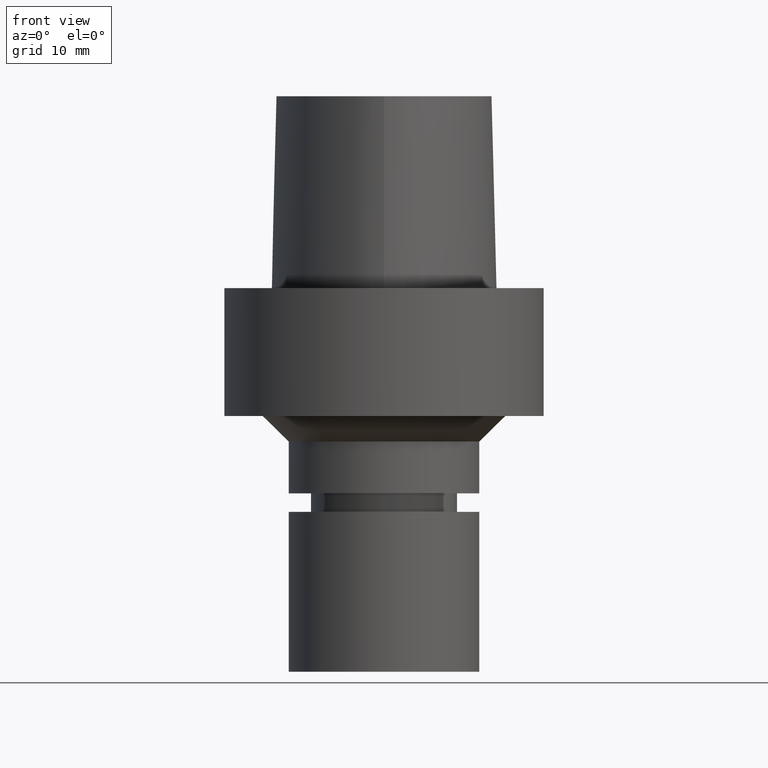
[diagram: clean part render]
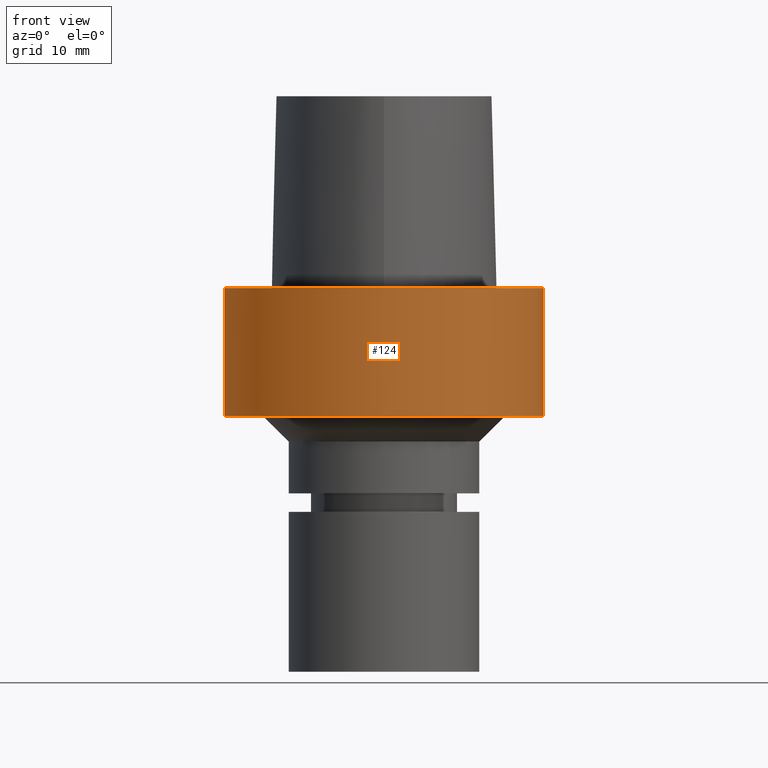
[diagram: same view with one face highlighted and labeled with its STEP entity id]
A machine part, front view. The second image highlights one B-rep face of the part: STEP entity #124.
In plain terms, the highlighted cylindrical surface (bore or boss wall) has radius 25 mm, axis along (0, 0, -1).
Its self-contained STEP definition (entity closure, byte-faithful):
#84=EDGE_CURVE('Unnamed[1]',#195,#195,#196,.T.);
#113=EDGE_CURVE('Unnamed[1]',#236,#236,#237,.T.);
#124=ADVANCED_FACE('Unnamed[1]',(#252,#253),#254,.T.);
#195=VERTEX_POINT('',#387);
#196=CIRCLE('',#388,25.0);
#236=VERTEX_POINT('',#824);
#237=CIRCLE('',#825,25.0);
#252=FACE_BOUND('',#895,.T.);
#253=FACE_BOUND('',#896,.T.);
#254=CYLINDRICAL_SURFACE('',#897,25.0);
#387=CARTESIAN_POINT('',(1.22464679914735E-015,25.0,-20.0));
#388=AXIS2_PLACEMENT_3D('',#968,#969,#970);
#824=CARTESIAN_POINT('',(-3.08148791101958E-031,25.0,3.06161699786838E-015));
#825=AXIS2_PLACEMENT_3D('',#1010,#1011,#1012);
#895=EDGE_LOOP('',(#1026));
#896=EDGE_LOOP('',(#1027));
#897=AXIS2_PLACEMENT_3D('',#1028,#1029,#1030);
#968=CARTESIAN_POINT('',(1.22464679914735E-015,2.44929359829471E-015,-20.0));
#969=DIRECTION('',(6.12323399573677E-017,1.22464679914735E-016,-1.0));
#970=DIRECTION('',(-1.23259516440783E-032,1.0,1.22464679914735E-016));
#1010=CARTESIAN_POINT('',(0.0,0.0,0.0));
#1011=DIRECTION('',(6.12323399573677E-017,1.22464679914735E-016,-1.0));
#1012=DIRECTION('',(-1.23259516440783E-032,1.0,1.22464679914735E-016));
#1026=ORIENTED_EDGE('',*,*,#84,.F.);
#1027=ORIENTED_EDGE('',*,*,#113,.T.);
#1028=CARTESIAN_POINT('',(6.12323399573677E-016,1.22464679914735E-015,-10.0));
#1029=DIRECTION('',(6.12323399573677E-017,1.22464679914735E-016,-1.0));
#1030=DIRECTION('',(-1.23259516440783E-032,1.0,1.22464679914735E-016));